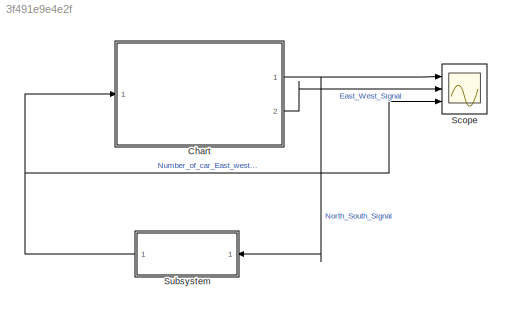
MODEL slx_3f491e9e4e2f
KIND model
CONFIG AbsTol = auto
CONFIG EnableMultiTasking = off
CONFIG FixedStep = auto
CONFIG MaxStep = auto
CONFIG MinStep = auto
CONFIG RelTol = 1e-3
CONFIG SampleTimeConstraint = Unconstrained
CONFIG SolverName = FixedStepAuto
CONFIG StartTime = 0.0
CONFIG StopTime = 100
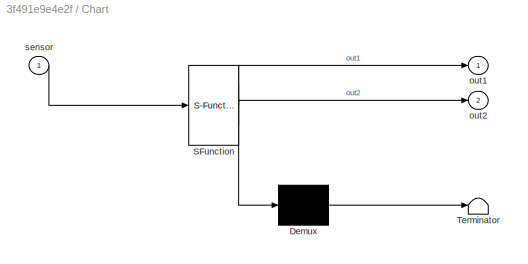
BLOCK [SubSystem] Chart
  ErrorFcn = Stateflow.Translate.translate
  PermitHierarchicalResolution = ExplicitOnly
  Ports = [1, 2]
  RequestExecContextInheritance = off
  SFBlockType = Chart
  TreatAsAtomicUnit = on
BLOCK [Demux] Chart/ Demux 
  Outputs = 1
  Ports = [1, 1]
BLOCK [S-Function] Chart/ SFunction 
  EnableBusSupport = on
  FunctionName = sf_sfun
  PortCounts = [1 3]
  Ports = [1, 3]
  SFcnIsStateOwnerBlock = off
  SFunctionDeploymentMode = off
  Tag = Stateflow S-Function 3
BLOCK [Terminator] Chart/ Terminator 
BLOCK [Outport] Chart/out1
BLOCK [Outport] Chart/out2
  Port = 2
BLOCK [Inport] Chart/sensor
BLOCK [Scope] Scope
  Floating = off
  NumInputPorts = 3
  Ports = [3]
  ScopeSpecificationString = Simulink.scopes.TimeScopeBlockCfg('CurrentConfiguration', extmgr.ConfigurationSet(extmgr.Configuration('Core','General UI',true),extmgr.Configuration('Core','Source UI',true),extmgr.Configuration('Sources','WiredSimulink',true),extmgr.Configuration('Visuals','Time Domain',true,'SerializedDisplays',{struct('MinYLimReal','0.75','MaxYLimReal','3.25','YLabelReal','','MinYLimMag','0.75','MaxYLimMag','3...<+2722ch>
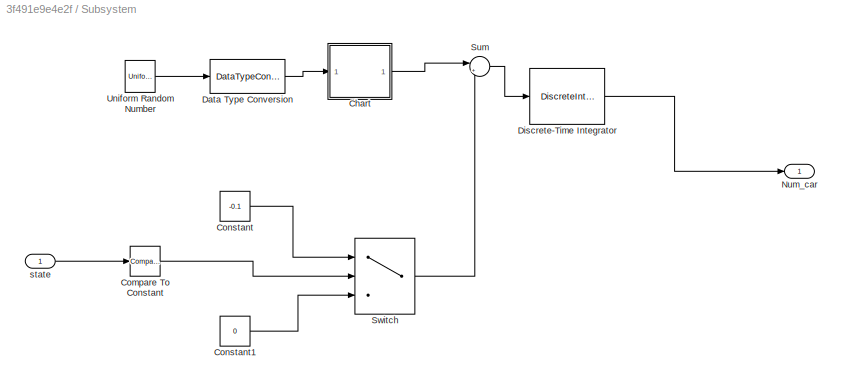
BLOCK [SubSystem] Subsystem
  NameLocation = top
  Ports = [1, 1]
  RequestExecContextInheritance = off
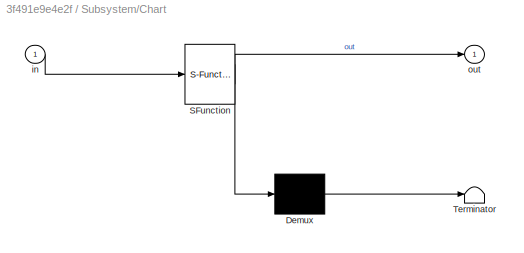
BLOCK [SubSystem] Subsystem/Chart
  ErrorFcn = Stateflow.Translate.translate
  PermitHierarchicalResolution = ExplicitOnly
  Ports = [1, 1]
  RequestExecContextInheritance = off
  SFBlockType = Chart
  TreatAsAtomicUnit = on
BLOCK [Demux] Subsystem/Chart/ Demux 
  Outputs = 1
  Ports = [1, 1]
BLOCK [S-Function] Subsystem/Chart/ SFunction 
  EnableBusSupport = on
  FunctionName = sf_sfun
  PortCounts = [1 2]
  Ports = [1, 2]
  SFcnIsStateOwnerBlock = off
  SFunctionDeploymentMode = off
  Tag = Stateflow S-Function 1
BLOCK [Terminator] Subsystem/Chart/ Terminator 
BLOCK [Inport] Subsystem/Chart/in
BLOCK [Outport] Subsystem/Chart/out
BLOCK [Reference] Subsystem/Compare To Constant  REF=simulink/Logic and Bit
Operations/Compare
To Constant
  Ports = [1, 1]
  SourceBlock = simulink/Logic and Bit\nOperations/Compare\nTo Constant
  SourceProductBaseCode = SL
  SourceType = Compare To Constant
BLOCK [Constant] Subsystem/Constant
  Value = -0.1
BLOCK [Constant] Subsystem/Constant1
  Value = 0
BLOCK [DataTypeConversion] Subsystem/Data Type Conversion
  OutDataTypeStr = int8
  RndMeth = Floor
  SaturateOnIntegerOverflow = off
BLOCK [DiscreteIntegrator] Subsystem/Discrete-Time Integrator
  ICPrevOutput = DiscIntNeverNeededParam
  ICPrevScaledInput = DiscIntNeverNeededParam
  InitialConditionSetting = Auto
  LowerSaturationLimit = 0
  Ports = [1, 1]
  SampleTime = -1
BLOCK [Outport] Subsystem/Num_car
BLOCK [Sum] Subsystem/Sum
  Inputs = |++
  Ports = [2, 1]
BLOCK [Switch] Subsystem/Switch
  Criteria = u2 ~= 0
  InputSameDT = off
  SaturateOnIntegerOverflow = off
BLOCK [UniformRandomNumber] Subsystem/Uniform Random Number
  Maximum = 100
  Minimum = 0
  SampleTime = 0
  Seed = 177836
BLOCK [Inport] Subsystem/state
NET Chart:1 -> Scope:1, Subsystem:1
LINE Chart:2 -> Scope:2
LINE Subsystem/Chart:1 -> Subsystem/Sum:1
LINE Subsystem/Compare To Constant:1 -> Subsystem/Switch:2
LINE Subsystem/Constant1:1 -> Subsystem/Switch:3
LINE Subsystem/Constant:1 -> Subsystem/Switch:1
LINE Subsystem/Data Type Conversion:1 -> Subsystem/Chart:1
LINE Subsystem/Discrete-Time Integrator:1 -> Subsystem/Num_car:1
LINE Subsystem/Sum:1 -> Subsystem/Discrete-Time Integrator:1
LINE Subsystem/Switch:1 -> Subsystem/Sum:2
LINE Subsystem/Uniform Random Number:1 -> Subsystem/Data Type Conversion:1
LINE Subsystem/state:1 -> Subsystem/Compare To Constant:1
NET Subsystem:1 -> Chart:1, Scope:3
note: NET lines group one-source signal fan-out (src -> all destinations, sorted); 1:1 wires keep LINE
CHART Subsystem/Chart states=0 transitions=1
CHART Chart states=5 transitions=6
  STATE_LABEL 'StopFor_N_S_traffic\nout1=RED;\nout2=GREEN;'
  STATE_LABEL 'stop\nout1=RED;\nout2=GREEN;'
  STATE_LABEL 'YellowSignalStop\nout1=RED;\nout2=YELLOW;'
  STATE_LABEL 'yellow_Go_To_stop\nout1=YELLOW;\nout2=RED;'
  STATE_LABEL 'Go_N_S_Traffic\nout1=GREEN;\nout2=RED;'
CHART  states=0 transitions=0
CHART  states=0 transitions=0
